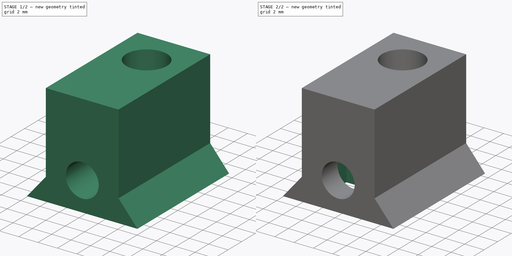
[diagram: build sequence overview — one tinted view per stage of 2, left to right]
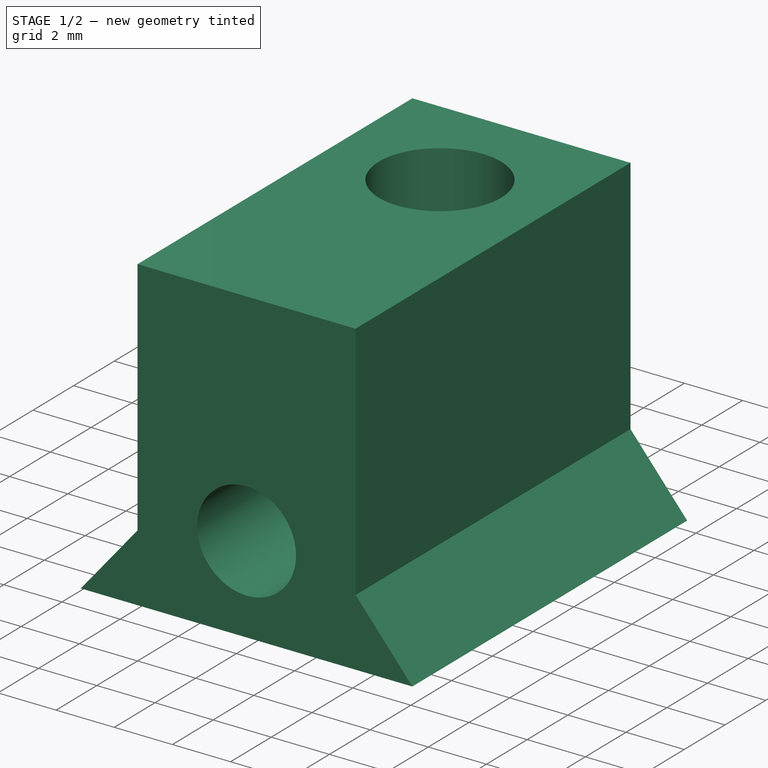
[diagram: stage 1 of 2 — iso view after this stage's code; geometry added in this stage tinted green]
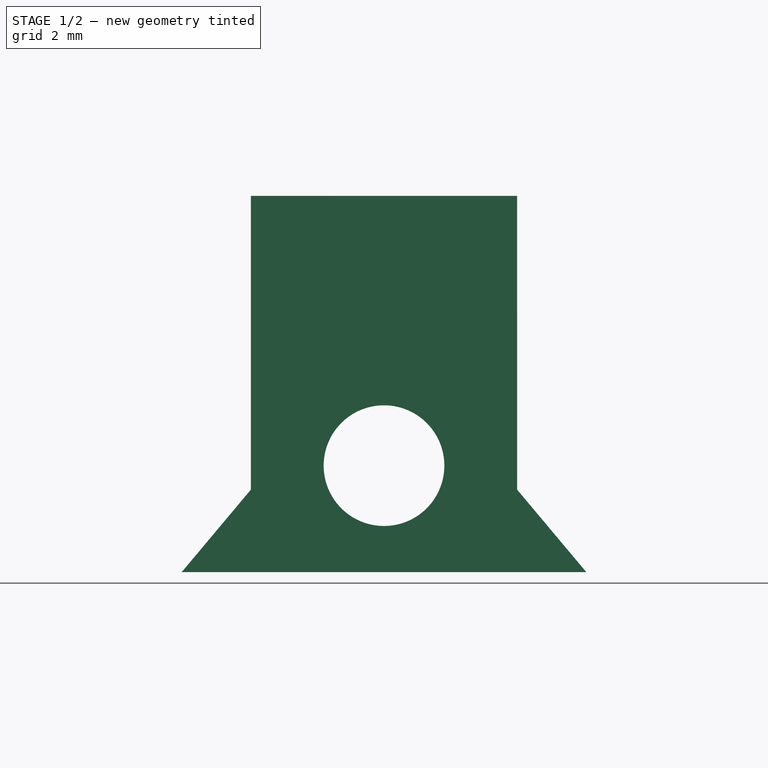
[diagram: stage 1 of 2 — front view after this stage's code; geometry added in this stage tinted green]
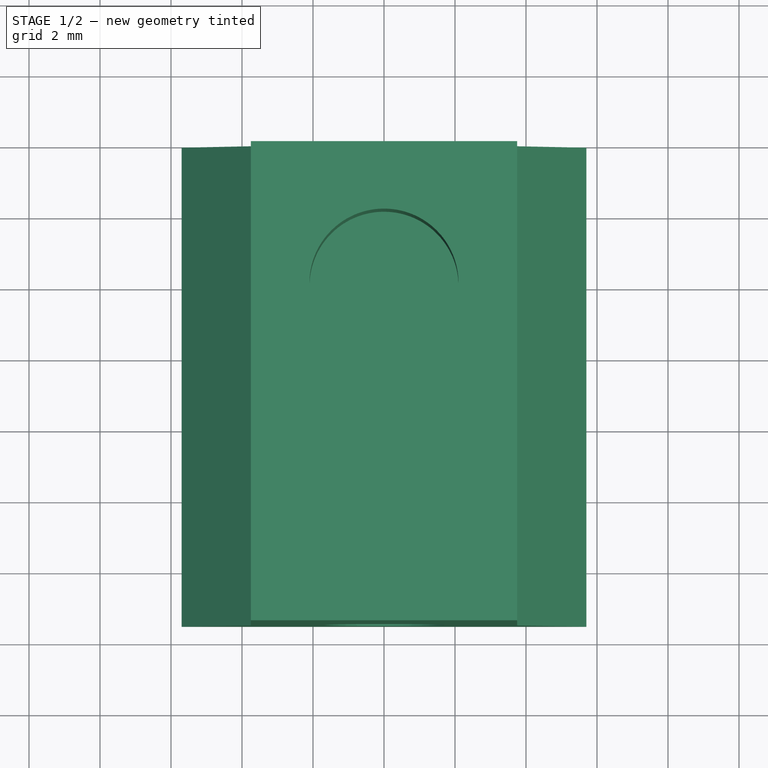
[diagram: stage 1 of 2 — top view after this stage's code; geometry added in this stage tinted green]
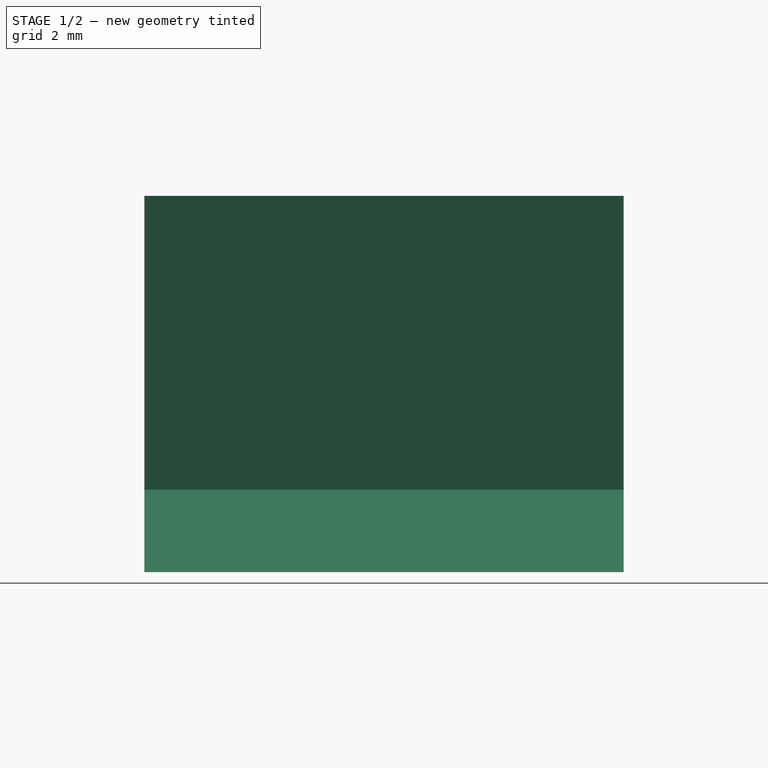
[diagram: stage 1 of 2 — right view after this stage's code; geometry added in this stage tinted green]
FCSTD DOCUMENT  (FreeCAD 0.19R24276 (Git))
Label: Art3TensionerBody
License: All rights reserved
LicenseURL: http://en.wikipedia.org/wiki/All_rights_reserved
objects: Sketcher::SketchObject×3, PartDesign::Pocket×2, PartDesign::CoordinateSystem×2, Spreadsheet::Sheet×1, PartDesign::Pad×1, PartDesign::Plane×1, PartDesign::Line×1, PartDesign::Body×1
note: 14 computed .brp shape members not serialized (recipe doc carries the construction recipe); baked Part::Feature solids carry a one-line shape summary decoded from their .brp

FEATURE [Spreadsheet::Sheet] Spreadsheet
  cells = A2=M3BoltBodyRadius; B2(M3BoltBodyRadius)=1.7; A3=M3BoltHeadRadius; B3(M3BoltHeadRadius)=2.95; A4=M3NutCircumradius; B4(M3NutCircumradius)=3.35; A5=M3NutThickness; B5(M3NutThickness)=3; A6=Bearing655ZZBodyRadius; B6(Bearing655ZZBodyRadius)=8.199999999999999
FEATURE [Sketcher::SketchObject] Sketch
  FullyConstrained = true
  MapMode = 5
  Placement = pos=(0,0,0) rot=(1,0,0;1.5708rad)
  Support = -> [XZ_Plane]
  expr: Constraints[17] = Spreadsheet.M3BoltBodyRadius
  sketch-geometry (7):
    g0: LineSegment StartX=-5.7 StartY=0 StartZ=0 EndX=5.7 EndY=0 EndZ=0
    g1: LineSegment StartX=5.7 StartY=0 StartZ=0 EndX=3.75 EndY=2.32392 EndZ=0
    g2: LineSegment StartX=3.75 StartY=2.32392 StartZ=0 EndX=3.75 EndY=10.6 EndZ=0
    g3: LineSegment StartX=3.75 StartY=10.6 StartZ=0 EndX=-3.75 EndY=10.6 EndZ=0
    g4: LineSegment StartX=-3.75 StartY=10.6 StartZ=0 EndX=-3.75 EndY=2.32392 EndZ=0
    g5: LineSegment StartX=-3.75 StartY=2.32392 StartZ=0 EndX=-5.7 EndY=0 EndZ=0
    g6: Circle CenterX=0 CenterY=3 CenterZ=0 NormalX=0 NormalY=0 NormalZ=1 AngleXU=0 Radius=1.7
  constraints (19):
    c: PointOnObject(g0,g-1)
    c: Coincident(g0,g1)
    c: Coincident(g1,g2)
    c: Vertical(g2)
    c: Coincident(g2,g3)
    c: Horizontal(g3)
    c: Coincident(g3,g4)
    c: Vertical(g4)
    c: Coincident(g4,g5)
    c: Coincident(g5,g0)
    c: Symmetric(g0,g0,g-2)
    c: Symmetric(g4,g1,g-2)
    c: DistanceX(g0,g0) = 11.4
    c: Angle(g1,g0) = 0.872665
    c: DistanceX(g4,g1) = 7.5
    c: DistanceY(g0,g2) = 10.6
    c: PointOnObject(g6,g-2)
    c: Radius(g6) = 1.7
    c: DistanceY(g-1,g6) = 3
FEATURE [PartDesign::Pad] Pad
  Direction = (1,1,1)
  Length = 13.5
  Length2 = 100
  Placement = pos=(0,0,0) rot=(1,0,0;1.5708rad)
  Profile = -> Sketch
  Refine = true
  Type = 0
FEATURE [Sketcher::SketchObject] Sketch001
  FullyConstrained = true
  MapMode = 5
  Placement = pos=(0,7e-15,10.6) rot=(0,0,1;3.14159rad)
  Support = -> [Pad]
  sketch-geometry (1):
    g0: Circle CenterX=0 CenterY=4 CenterZ=0 NormalX=0 NormalY=0 NormalZ=1 AngleXU=0 Radius=2.1
  constraints (3):
    c: PointOnObject(g0,g-2)
    c: Radius(g0) = 2.1
    c: DistanceY(g-1,g0) = 4
FEATURE [PartDesign::Pocket] Pocket
  BaseFeature = -> Pad
  Length = 5.1
  Length2 = 100
  Placement = pos=(0,0,0) rot=(1,0,0;1.5708rad)
  Profile = -> Sketch001
  Refine = true
  Type = 0
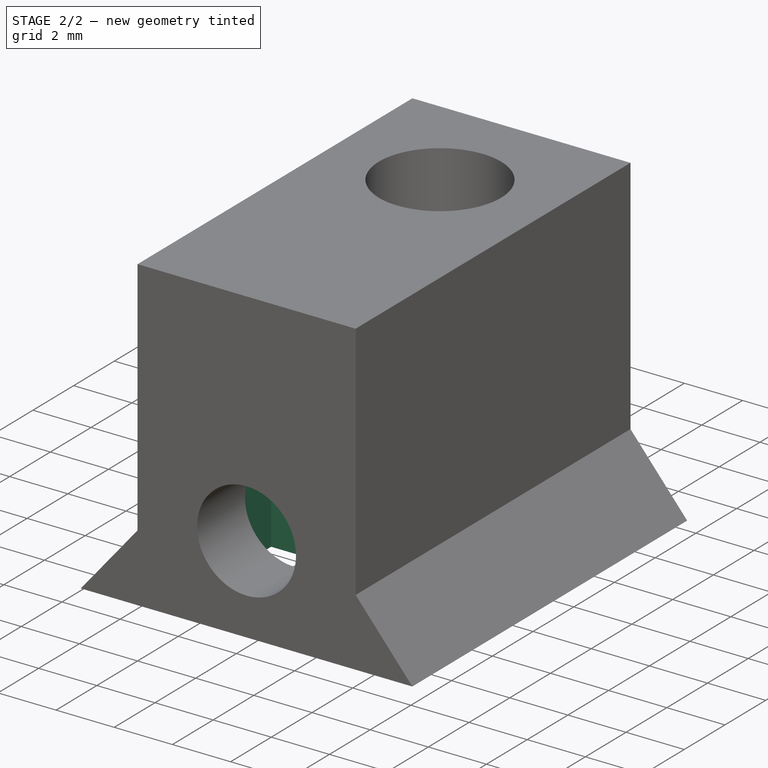
[diagram: stage 2 of 2 — iso view after this stage's code; geometry added in this stage tinted green]
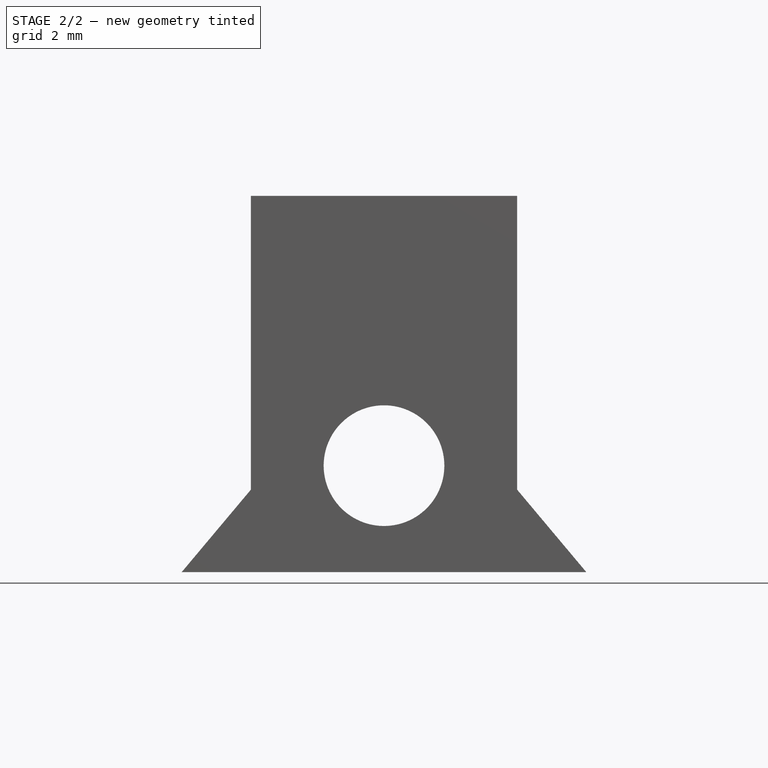
[diagram: stage 2 of 2 — front view after this stage's code; geometry added in this stage tinted green]
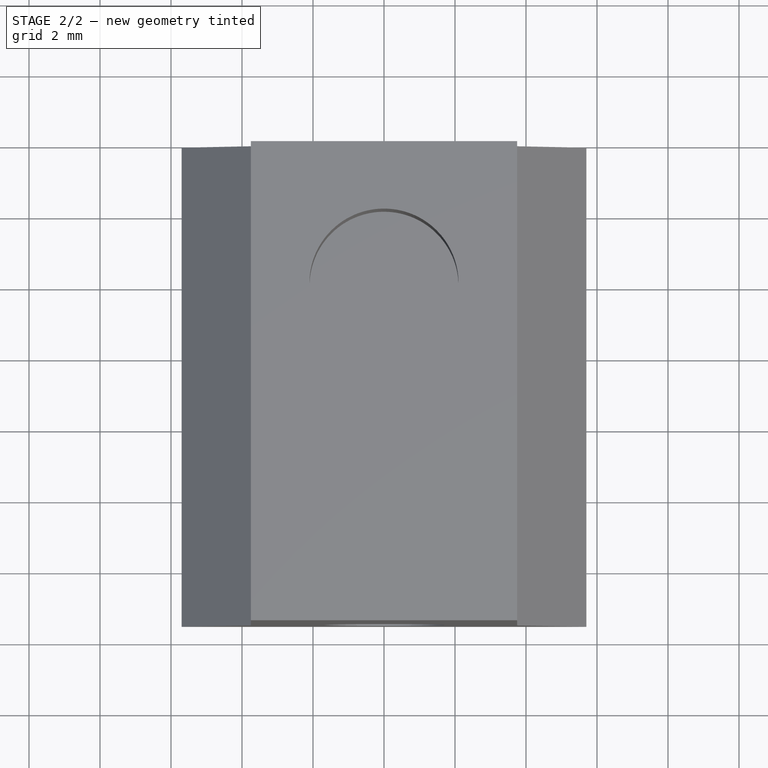
[diagram: stage 2 of 2 — top view after this stage's code; geometry added in this stage tinted green]
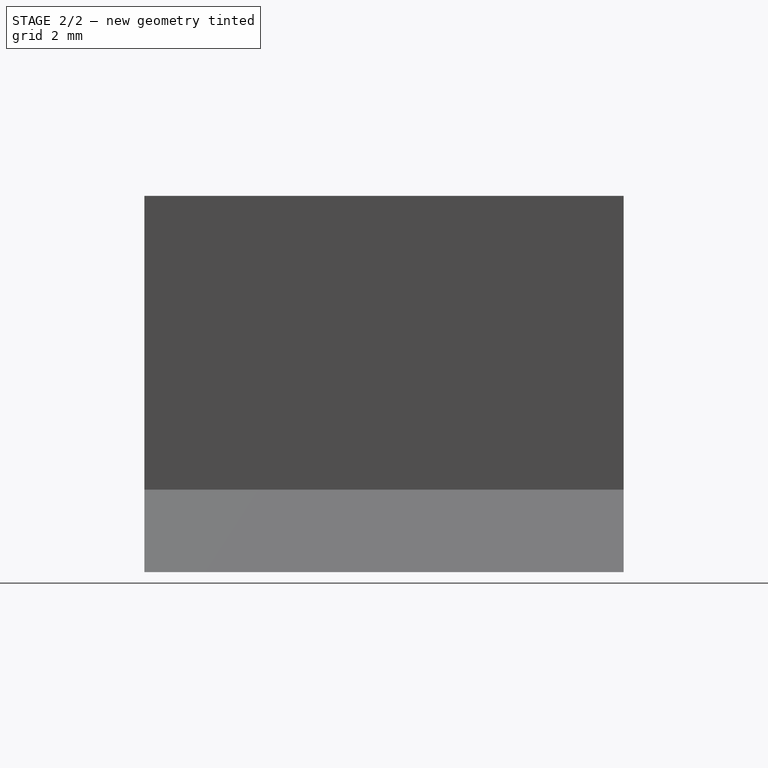
[diagram: stage 2 of 2 — right view after this stage's code; geometry added in this stage tinted green]
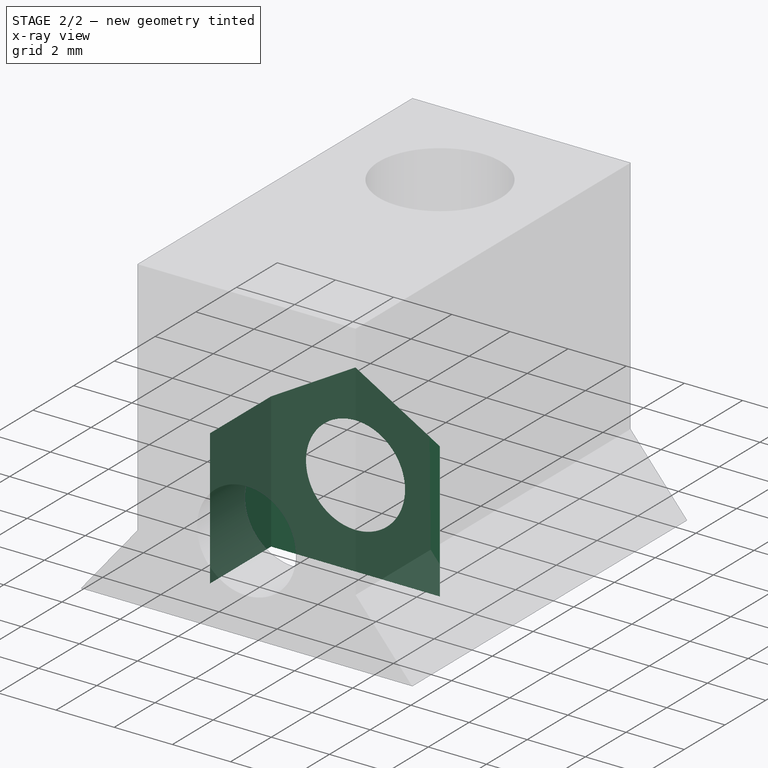
[diagram: stage 2 of 2 — x-ray composite at the iso view; earlier geometry ghosted, this stage's added geometry solid]
FEATURE [PartDesign::Plane] DatumPlane
  AttachmentOffset = pos=(0,0,-3.85) rot=(0,0,1;0rad)
  Length = 60
  MapMode = 5
  Placement = pos=(0,-9.65,4.3e-15) rot=(1,0,0;1.5708rad)
  ResizeMode = 0
  Support = -> [Pocket]
  Width = 60
FEATURE [Sketcher::SketchObject] Sketch002
  ExternalGeometry = -> [Pocket]
  FullyConstrained = true
  MapMode = 5
  Placement = pos=(0,-9.65,4.3e-15) rot=(1,0,0;1.5708rad)
  Support = -> [DatumPlane]
  expr: Constraints[27] = Spreadsheet.M3NutCircumradius
  sketch-geometry (10):
    g0: LineSegment StartX=0 StartY=6.35 StartZ=0 EndX=-2.90119 EndY=4.675 EndZ=0
    g1: LineSegment StartX=-2.90119 StartY=4.675 StartZ=0 EndX=-2.90119 EndY=1.325 EndZ=0
    g2: LineSegment StartX=-2.90119 StartY=1.325 StartZ=0 EndX=-1.075e-13 EndY=-0.35 EndZ=0
    g3: LineSegment StartX=-1.075e-13 StartY=-0.35 StartZ=0 EndX=2.90119 EndY=1.325 EndZ=0
    g4: LineSegment StartX=2.90119 StartY=1.325 StartZ=0 EndX=2.90119 EndY=4.675 EndZ=0
    g5: LineSegment StartX=2.90119 StartY=4.675 StartZ=0 EndX=0 EndY=6.35 EndZ=0
    g6: Circle CenterX=0 CenterY=3 CenterZ=0 NormalX=0 NormalY=0 NormalZ=1 AngleXU=0 Radius=3.35
    g7: LineSegment StartX=-2.90119 StartY=4.675 StartZ=0 EndX=-2.90119 EndY=-5.325 EndZ=0
    g8: LineSegment StartX=-2.90119 StartY=-5.325 StartZ=0 EndX=2.90119 EndY=-5.325 EndZ=0
    g9: LineSegment StartX=2.90119 StartY=-5.325 StartZ=0 EndX=2.90119 EndY=4.675 EndZ=0
  constraints (24):
    c: Coincident(g0,g1)
    c: Coincident(g1,g2)
    c: Coincident(g2,g3)
    c: Coincident(g3,g4)
    c: Coincident(g4,g5)
    c: Coincident(g5,g0)
    c: Equal(g0, g1-g5) x5
    c: PointOnObject(g0,g6)
    c: PointOnObject(g1,g6)
    c: PointOnObject(g2,g6)
    c: PointOnObject(g3,g6)
    c: PointOnObject(g4,g6)
    c: PointOnObject(g5,g6)
    c: Coincident(g6,g-3)
    c: PointOnObject(g0,g-2)
    c: Coincident(g0,g7)
    c: Vertical(g7)
    c: Coincident(g7,g8)
    c: Horizontal(g8)
    c: Coincident(g8,g9)
    c: Coincident(g9,g5)
    c: Vertical(g9)
    c: DistanceY(g9,g9) = 10
    c: Radius(g6) = 3.35
FEATURE [PartDesign::Pocket] Pocket001
  BaseFeature = -> Pocket
  Length = 3
  Length2 = 100
  Midplane = true
  Placement = pos=(0,0,0) rot=(1,0,0;1.5708rad)
  Profile = -> Sketch002
  Refine = true
  Type = 0
  expr: Length = Spreadsheet.M3NutThickness
FEATURE [PartDesign::CoordinateSystem] LCS_Art3TensionerBody
  AttacherType = Attacher::AttachEngine3D
  MapMode = 45
  Placement = pos=(0,-13.5,9e-15) rot=(0.57735,0.57735,0.57735;2.0944rad)
  Support = -> [Pocket001]
FEATURE [PartDesign::CoordinateSystem] LCS_TopShaft
  AttacherType = Attacher::AttachEngine3D
  MapMode = 11
  Placement = pos=(0,-4,5.5) rot=(0,0,-1;1.5708rad)
  Support = -> [Pocket001]
FEATURE [PartDesign::Line] HoleAxis_1
  AttacherType = Attacher::AttachEngineLine
  Length = 4.79083
  MapMode = 19
  Placement = pos=(-2e-16,-11.15,3) rot=(-1,0,0;1.5708rad)
  ResizeMode = 1
  Support = -> [Pocket001]
FEATURE [PartDesign::Body] Body  label="Art3TensionerBody"
  Group = -> [Sketch,Pad,Sketch001,Pocket,DatumPlane,Sketch002,Pocket001,LCS_Art3TensionerBody,LCS_TopShaft,HoleAxis_1]
  Origin = -> Origin
  Tip = -> Pocket001
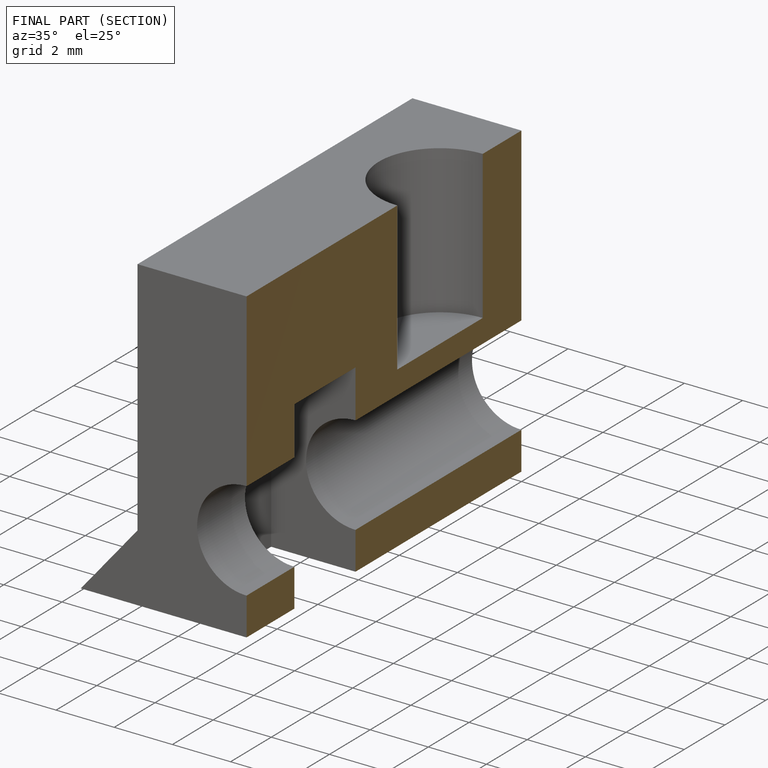
[diagram: finished part — half-section view (interior)]
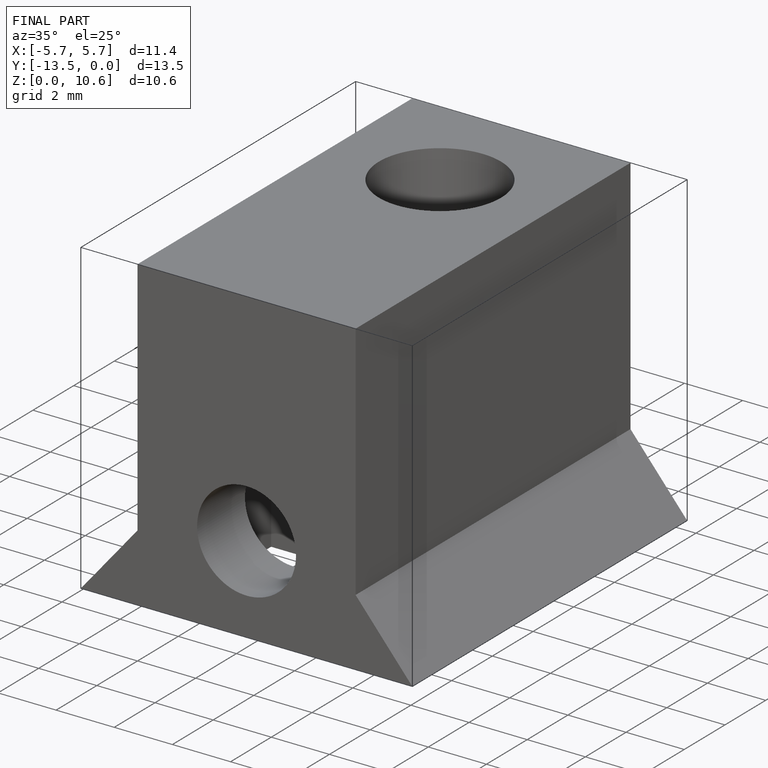
[diagram: finished part — iso view with bounding-box wireframe]
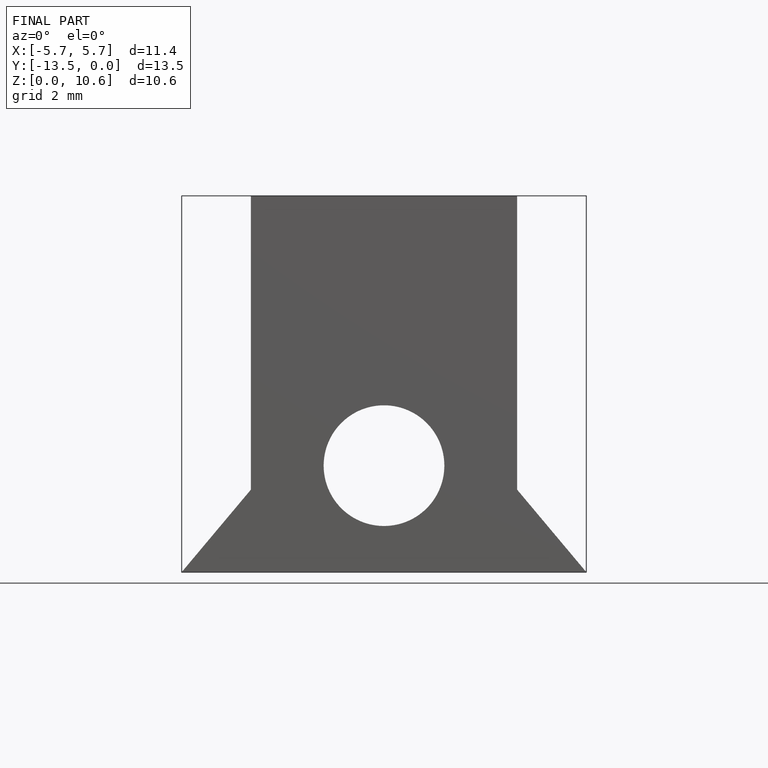
[diagram: finished part — front view with bounding-box wireframe]
